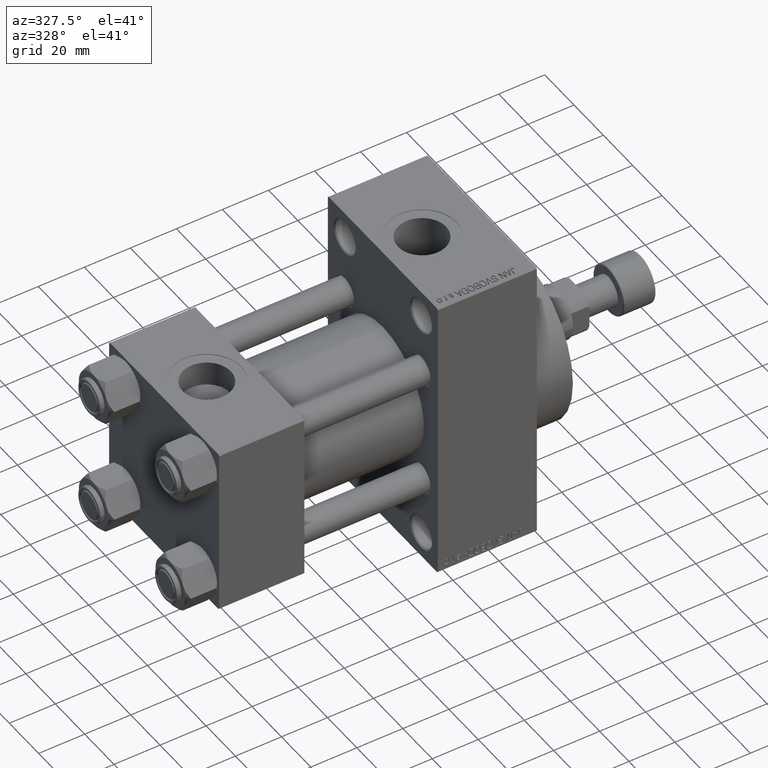
[diagram: clean part render]
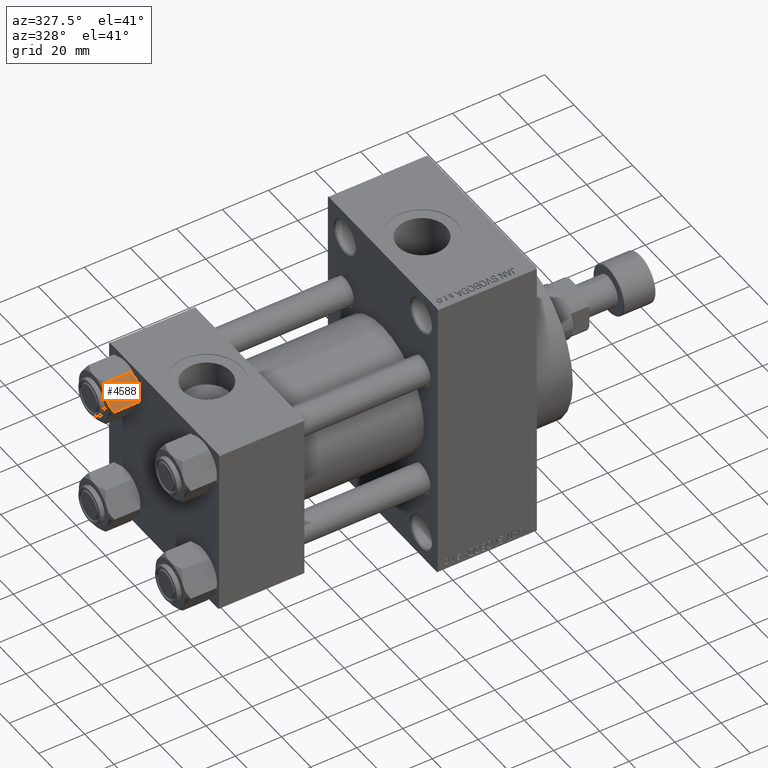
[diagram: same view with one face highlighted and labeled with its STEP entity id]
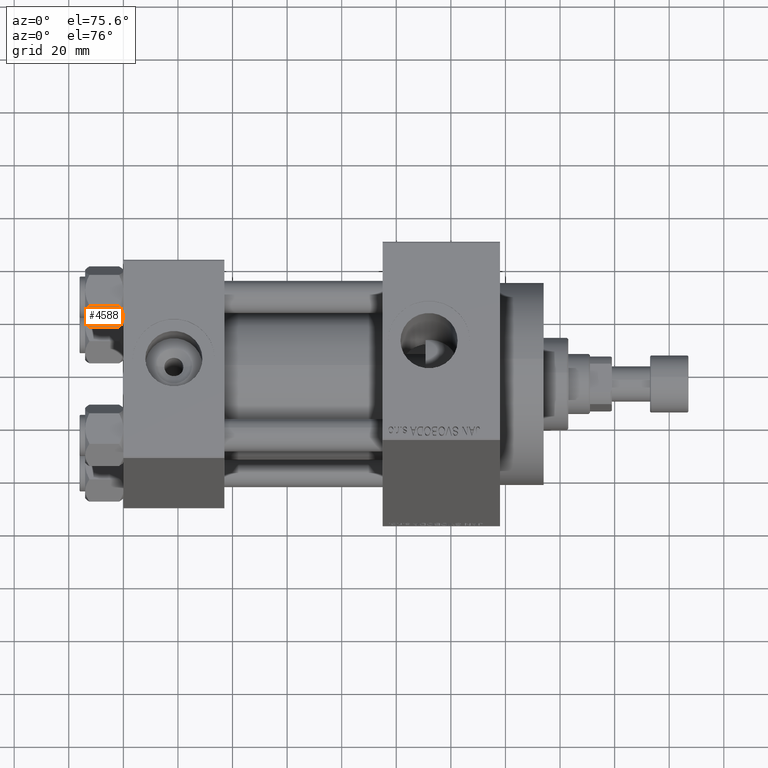
[diagram: same view with one face highlighted and labeled with its STEP entity id]
A machine part, auxiliary view. The second image highlights one B-rep face of the part: STEP entity #4588.
A second angle (auxiliary view) of the same face is appended — the face is thin or edge-on in the first view.
In plain terms, the highlighted planar face has unit normal (0, 0.866, -0.5).
Its self-contained STEP definition (entity closure, byte-faithful):
#623 = ORIENTED_EDGE ( 'NONE', *, *, #7933, .F. ) ;
#714 = ORIENTED_EDGE ( 'NONE', *, *, #28681, .T. ) ;
#851 = CARTESIAN_POINT ( 'NONE',  ( -11.61999999999999922, 6.270720075510426383E-15, -12.44321519197518988 ) ) ;
#1338 = EDGE_CURVE ( 'NONE', #40783, #47258, #2871, .T. ) ;
#1570 = CARTESIAN_POINT ( 'NONE',  ( -8.715000000000006963, -5.031607595987586556, -14.00000000000000000 ) ) ;
#1683 = CARTESIAN_POINT ( 'NONE',  ( -6.265545725125283738, -9.274186850887380373, -12.89876091710046779 ) ) ;
#1862 = CARTESIAN_POINT ( 'NONE',  ( -11.61999999999999922, 6.270720075409452187E-15, -1.556784808024810562 ) ) ;
#1927 = CARTESIAN_POINT ( 'NONE',  ( -8.715000000000006963, -5.031607595987586556, -14.00000000000000000 ) ) ;
#2871 = B_SPLINE_CURVE_WITH_KNOTS ( 'NONE', 3,
 ( #34226, #41953, #45100, #41477, #15146, #22381 ),
 .UNSPECIFIED., .F., .F.,
 ( 4, 2, 4 ),
 ( 0.006022845781655586372, 0.009013049135303635023, 0.01200325248895168367 ),
 .UNSPECIFIED. ) ;
#2964 = CARTESIAN_POINT ( 'NONE',  ( -11.61999999999999922, 6.288644352490894150E-15, -14.00000000000000000 ) ) ;
#3230 = EDGE_CURVE ( 'NONE', #23322, #40783, #3279, .T. ) ;
#3279 = B_SPLINE_CURVE_WITH_KNOTS ( 'NONE', 3,
 ( #1862, #9114, #20221, #25222, #34980, #16610, #5731, #42227 ),
 .UNSPECIFIED., .F., .F.,
 ( 4, 2, 2, 4 ),
 ( 2.544312114893457383E-07, 0.003011550106433538623, 0.004517197944044561847, 0.006022845781655586372 ),
 .UNSPECIFIED. ) ;
#4588 = ADVANCED_FACE ( 'NONE', ( #32719 ), #25709, .F. ) ;
#5731 = CARTESIAN_POINT ( 'NONE',  ( -8.969430103550386946, -4.590921729663310025, 6.662949392646161370E-15 ) ) ;
#7933 = EDGE_CURVE ( 'NONE', #26286, #23837, #10496, .T. ) ;
#9114 = CARTESIAN_POINT ( 'NONE',  ( -11.16445427487471420, -0.7890283410877914072, -1.101239082899528432 ) ) ;
#10312 = EDGE_CURVE ( 'NONE', #23356, #26286, #47215, .T. ) ;
#10496 = B_SPLINE_CURVE_WITH_KNOTS ( 'NONE', 3,
 ( #1570, #41463, #27442, #11970, #19698, #851 ),
 .UNSPECIFIED., .F., .F.,
 ( 4, 2, 4 ),
 ( 0.006022845781655596781, 0.009013049135303641962, 0.01200325248895168714 ),
 .UNSPECIFIED. ) ;
#11970 = CARTESIAN_POINT ( 'NONE',  ( -10.69662495661650148, -1.599332489581326344, -13.28854452935655317 ) ) ;
#13281 = CARTESIAN_POINT ( 'NONE',  ( -7.700834831386346835, -6.788193195293090731, -13.80960203119266438 ) ) ;
#13520 = CARTESIAN_POINT ( 'NONE',  ( -8.460569896449619876, -5.472293462311856871, -14.00000000000000888 ) ) ;
#15146 = CARTESIAN_POINT ( 'NONE',  ( -6.265018354709776638, -9.275100283241451748, -1.101766453314952043 ) ) ;
#16401 = CARTESIAN_POINT ( 'NONE',  ( -11.61999999999999922, 6.270720075409452187E-15, -1.556784808024810562 ) ) ;
#16610 = CARTESIAN_POINT ( 'NONE',  ( -9.227666995912100489, -4.143642311704120118, -0.03994118060690279165 ) ) ;
#17394 = ORIENTED_EDGE ( 'NONE', *, *, #3230, .F. ) ;
#18912 = CARTESIAN_POINT ( 'NONE',  ( -5.810000000000000497, -10.06321519197517844, -1.556784808024813893 ) ) ;
#19698 = CARTESIAN_POINT ( 'NONE',  ( -11.16498164529022219, -0.7881149087337223635, -12.89823354668505040 ) ) ;
#20068 = EDGE_LOOP ( 'NONE', ( #20984, #714, #46254, #17394, #41631, #623 ) ) ;
#20221 = CARTESIAN_POINT ( 'NONE',  ( -10.69859855102500923, -1.595914123792257611, -0.7141438259524607313 ) ) ;
#20287 = CARTESIAN_POINT ( 'NONE',  ( -6.731401448974989599, -8.467301068182909063, -13.28585617404753272 ) ) ;
#20984 = ORIENTED_EDGE ( 'NONE', *, *, #10312, .F. ) ;
#22381 = CARTESIAN_POINT ( 'NONE',  ( -5.810000000000000497, -10.06321519197517844, -1.556784808024813893 ) ) ;
#23154 = CARTESIAN_POINT ( 'NONE',  ( -8.715000000000006963, -5.031607595987586556, 0.000000000000000000 ) ) ;
#23322 = VERTEX_POINT ( 'NONE', #16401 ) ;
#23356 = VERTEX_POINT ( 'NONE', #39114 ) ;
#23547 = LINE ( 'NONE', #41928, #41754 ) ;
#23837 = VERTEX_POINT ( 'NONE', #25734 ) ;
#24203 = CARTESIAN_POINT ( 'NONE',  ( -8.715000000000006963, -5.031607595987586556, -14.00000000000000000 ) ) ;
#24993 = DIRECTION ( 'NONE',  ( 0.8660254037844390407, 0.4999999999999995004, 0.000000000000000000 ) ) ;
#25222 = CARTESIAN_POINT ( 'NONE',  ( -9.974696630283190757, -2.849749030213787115, -0.3002673809867329457 ) ) ;
#25423 = DIRECTION ( 'NONE',  ( -0.000000000000000000, -0.000000000000000000, 1.000000000000000000 ) ) ;
#25709 = PLANE ( 'NONE',  #34664 ) ;
#25734 = CARTESIAN_POINT ( 'NONE',  ( -11.61999999999999922, 6.270720075510426383E-15, -12.44321519197518988 ) ) ;
#26286 = VERTEX_POINT ( 'NONE', #24203 ) ;
#27442 = CARTESIAN_POINT ( 'NONE',  ( -9.716999946243698005, -3.296092779912219939, -13.84547602999602667 ) ) ;
#28681 = EDGE_CURVE ( 'NONE', #23356, #47258, #23547, .T. ) ;
#30628 = EDGE_CURVE ( 'NONE', #23837, #23322, #46953, .T. ) ;
#30819 = DIRECTION ( 'NONE',  ( -0.000000000000000000, -0.000000000000000000, 1.000000000000000000 ) ) ;
#31188 = CARTESIAN_POINT ( 'NONE',  ( -7.455303369716809847, -7.213466161761383333, -13.69973261901326644 ) ) ;
#32719 = FACE_OUTER_BOUND ( 'NONE', #20068, .T. ) ;
#34226 = CARTESIAN_POINT ( 'NONE',  ( -8.715000000000006963, -5.031607595987586556, 0.000000000000000000 ) ) ;
#34664 = AXIS2_PLACEMENT_3D ( 'NONE', #43837, #24993, #39741 ) ;
#34980 = CARTESIAN_POINT ( 'NONE',  ( -9.729165168613654657, -3.275021996682076608, -0.1903979688073365595 ) ) ;
#35045 = CARTESIAN_POINT ( 'NONE',  ( -8.202333004087902779, -5.919572880271047666, -13.96005881939309745 ) ) ;
#39114 = CARTESIAN_POINT ( 'NONE',  ( -5.810000000000000497, -10.06321519197517844, -12.44321519197518633 ) ) ;
#39741 = DIRECTION ( 'NONE',  ( -0.4999999999999994449, 0.8660254037844389297, 0.000000000000000000 ) ) ;
#40783 = VERTEX_POINT ( 'NONE', #23154 ) ;
#41463 = CARTESIAN_POINT ( 'NONE',  ( -9.220295946303428636, -4.156409344131446026, -14.00000000000000711 ) ) ;
#41477 = CARTESIAN_POINT ( 'NONE',  ( -6.733375043383495573, -8.463882702393842550, -0.7114554706434480513 ) ) ;
#41631 = ORIENTED_EDGE ( 'NONE', *, *, #30628, .F. ) ;
#41754 = VECTOR ( 'NONE', #30819, 1000.000000000000000 ) ;
#41928 = CARTESIAN_POINT ( 'NONE',  ( -5.810000000000000497, -10.06321519197517844, -14.00000000000000000 ) ) ;
#41953 = CARTESIAN_POINT ( 'NONE',  ( -8.209704053696567527, -5.906805847843720869, 6.159623592433269699E-15 ) ) ;
#42227 = CARTESIAN_POINT ( 'NONE',  ( -8.715000000000006963, -5.031607595987586556, 0.000000000000000000 ) ) ;
#42533 = CARTESIAN_POINT ( 'NONE',  ( -5.810000000000000497, -10.06321519197517844, -12.44321519197518633 ) ) ;
#43837 = CARTESIAN_POINT ( 'NONE',  ( -5.810000000000000497, -10.06321519197517844, -14.00000000000000000 ) ) ;
#44789 = VECTOR ( 'NONE', #25423, 1000.000000000000000 ) ;
#45100 = CARTESIAN_POINT ( 'NONE',  ( -7.713000053756304375, -6.767122412062951398, -0.1545239700039803266 ) ) ;
#46254 = ORIENTED_EDGE ( 'NONE', *, *, #1338, .F. ) ;
#46953 = LINE ( 'NONE', #2964, #44789 ) ;
#47215 = B_SPLINE_CURVE_WITH_KNOTS ( 'NONE', 3,
 ( #42533, #1683, #20287, #31188, #13281, #35045, #13520, #1927 ),
 .UNSPECIFIED., .F., .F.,
 ( 4, 2, 2, 4 ),
 ( 2.544312114906334931E-07, 0.003011550106433543393, 0.004517197944044570521, 0.006022845781655596781 ),
 .UNSPECIFIED. ) ;
#47258 = VERTEX_POINT ( 'NONE', #18912 ) ;